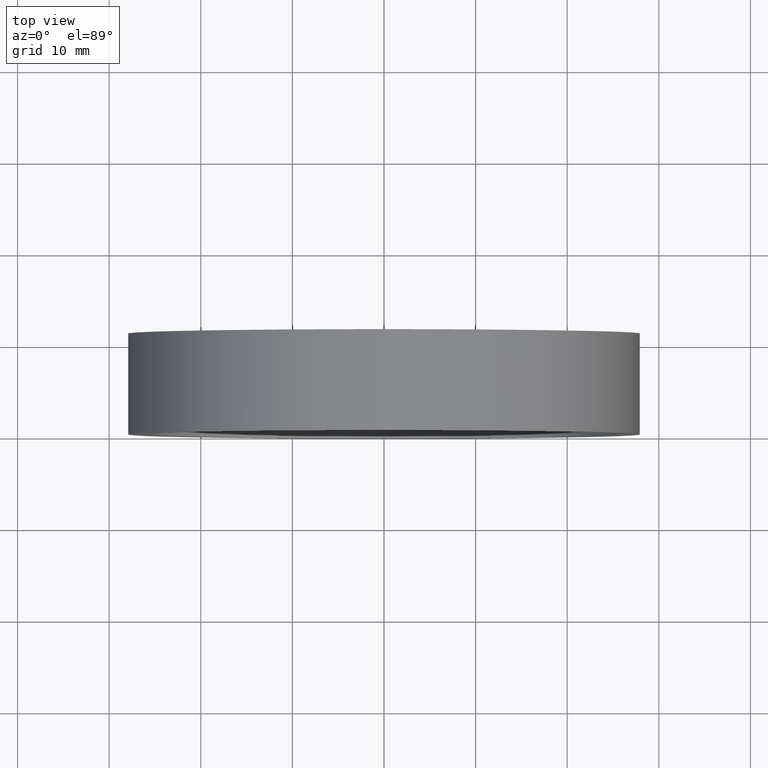
[diagram: clean part render]
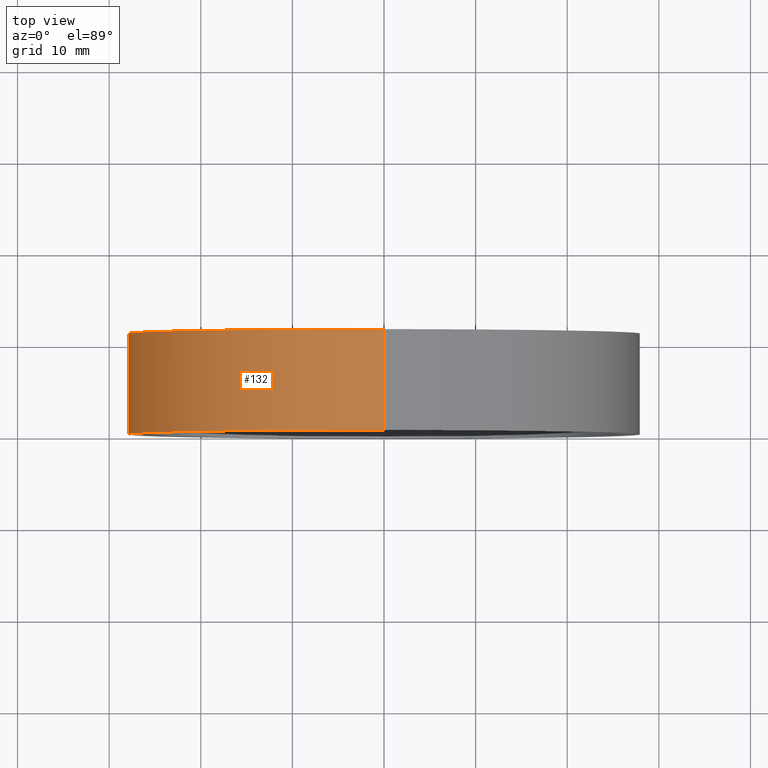
[diagram: same view with one face highlighted and labeled with its STEP entity id]
A machine part, top view. The second image highlights one B-rep face of the part: STEP entity #132.
In plain terms, the highlighted cylindrical surface (partial cylindrical patch) has radius 28 mm, axis along (-0, 1, -0).
Its self-contained STEP definition (entity closure, byte-faithful):
#2 = EDGE_CURVE ( 'NONE', #226, #207, #62, .T. ) ;
#3 = ORIENTED_EDGE ( 'NONE', *, *, #2, .F. ) ;
#15 = CYLINDRICAL_SURFACE ( 'NONE', #203, 28.00000000000000400 ) ;
#31 = DIRECTION ( 'NONE',  ( -0.0000000000000000000, 1.000000000000000000, -0.0000000000000000000 ) ) ;
#53 = DIRECTION ( 'NONE',  ( -0.0000000000000000000, 1.000000000000000000, -0.0000000000000000000 ) ) ;
#62 = LINE ( 'NONE', #166, #158 ) ;
#78 = CIRCLE ( 'NONE', #222, 28.00000000000000700 ) ;
#96 = FACE_OUTER_BOUND ( 'NONE', #133, .T. ) ;
#132 = ADVANCED_FACE ( 'NONE', ( #96 ), #15, .T. ) ;
#133 = EDGE_LOOP ( 'NONE', ( #3, #241, #250, #295 ) ) ;
#139 = CARTESIAN_POINT ( 'NONE',  ( 0.0000000000000000000, 0.0000000000000000000, 28.00000000000000700 ) ) ;
#145 = VERTEX_POINT ( 'NONE', #263 ) ;
#149 = CIRCLE ( 'NONE', #201, 28.00000000000000400 ) ;
#153 = CARTESIAN_POINT ( 'NONE',  ( 3.429011037612589700E-015, 10.99999999999999600, -28.00000000000000400 ) ) ;
#158 = VECTOR ( 'NONE', #332, 1000.000000000000000 ) ;
#166 = CARTESIAN_POINT ( 'NONE',  ( 3.429011037612589700E-015, 60.02082041425541100, -28.00000000000000400 ) ) ;
#194 = DIRECTION ( 'NONE',  ( 0.0000000000000000000, 0.0000000000000000000, 1.000000000000000000 ) ) ;
#201 = AXIS2_PLACEMENT_3D ( 'NONE', #339, #363, #303 ) ;
#203 = AXIS2_PLACEMENT_3D ( 'NONE', #321, #53, #194 ) ;
#207 = VERTEX_POINT ( 'NONE', #153 ) ;
#222 = AXIS2_PLACEMENT_3D ( 'NONE', #253, #31, #246 ) ;
#226 = VERTEX_POINT ( 'NONE', #289 ) ;
#241 = ORIENTED_EDGE ( 'NONE', *, *, #297, .T. ) ;
#246 = DIRECTION ( 'NONE',  ( 0.0000000000000000000, 0.0000000000000000000, 1.000000000000000000 ) ) ;
#250 = ORIENTED_EDGE ( 'NONE', *, *, #397, .T. ) ;
#253 = CARTESIAN_POINT ( 'NONE',  ( 0.0000000000000000000, 0.0000000000000000000, 0.0000000000000000000 ) ) ;
#263 = CARTESIAN_POINT ( 'NONE',  ( 0.0000000000000000000, 10.99999999999999600, 28.00000000000000400 ) ) ;
#281 = CARTESIAN_POINT ( 'NONE',  ( 0.0000000000000000000, 60.02082041425541100, 28.00000000000000400 ) ) ;
#285 = VECTOR ( 'NONE', #302, 1000.000000000000000 ) ;
#289 = CARTESIAN_POINT ( 'NONE',  ( 3.429011037612590100E-015, 0.0000000000000000000, -28.00000000000001100 ) ) ;
#295 = ORIENTED_EDGE ( 'NONE', *, *, #426, .F. ) ;
#297 = EDGE_CURVE ( 'NONE', #226, #371, #78, .T. ) ;
#302 = DIRECTION ( 'NONE',  ( -0.0000000000000000000, 1.000000000000000000, -0.0000000000000000000 ) ) ;
#303 = DIRECTION ( 'NONE',  ( 0.0000000000000000000, 0.0000000000000000000, 1.000000000000000000 ) ) ;
#321 = CARTESIAN_POINT ( 'NONE',  ( 0.0000000000000000000, 60.02082041425541100, 0.0000000000000000000 ) ) ;
#332 = DIRECTION ( 'NONE',  ( -0.0000000000000000000, 1.000000000000000000, -0.0000000000000000000 ) ) ;
#339 = CARTESIAN_POINT ( 'NONE',  ( 0.0000000000000000000, 10.99999999999999600, 0.0000000000000000000 ) ) ;
#363 = DIRECTION ( 'NONE',  ( -0.0000000000000000000, 1.000000000000000000, -0.0000000000000000000 ) ) ;
#371 = VERTEX_POINT ( 'NONE', #139 ) ;
#397 = EDGE_CURVE ( 'NONE', #371, #145, #409, .T. ) ;
#409 = LINE ( 'NONE', #281, #285 ) ;
#426 = EDGE_CURVE ( 'NONE', #207, #145, #149, .T. ) ;